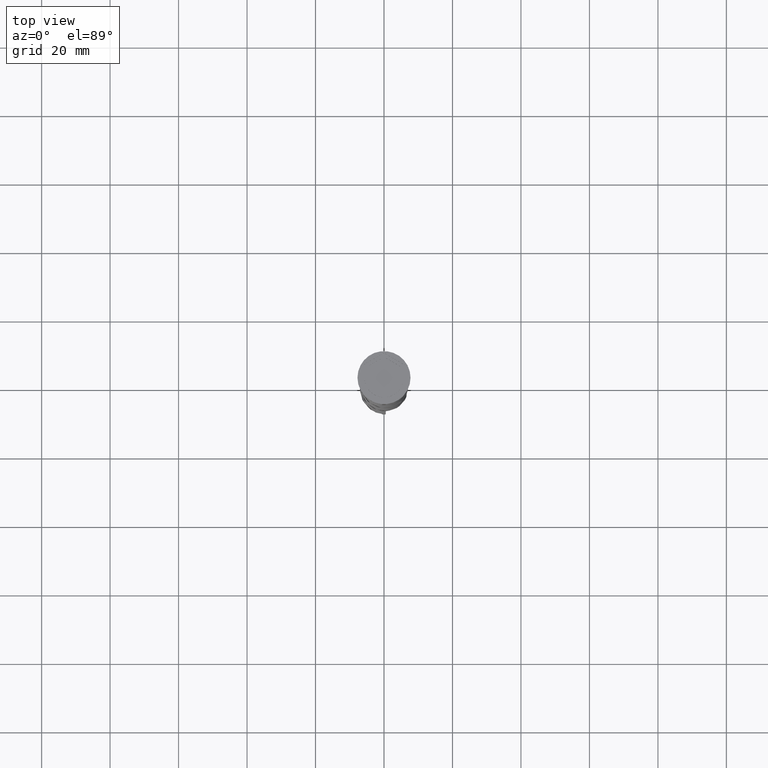
[diagram: clean part render]
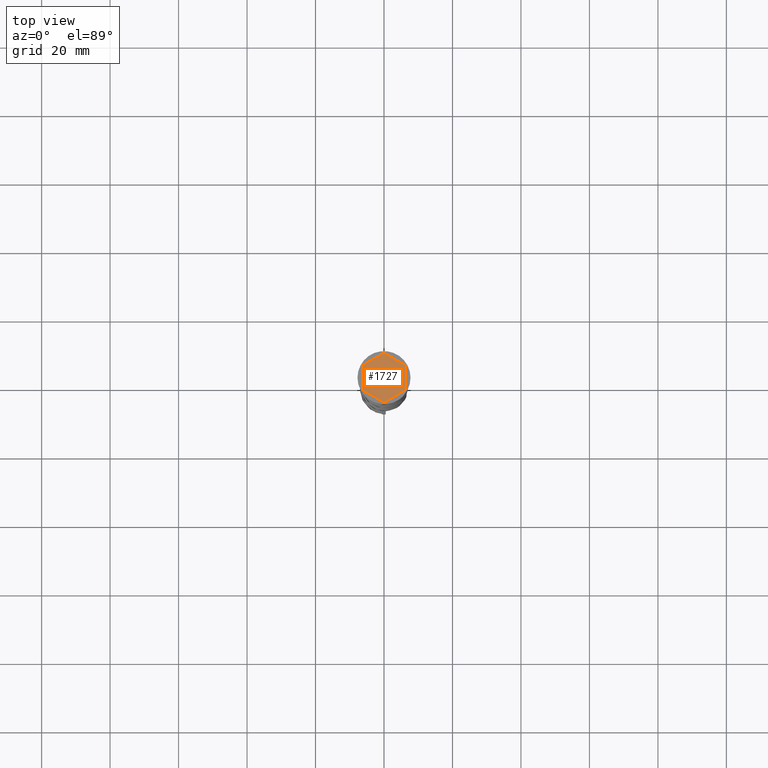
[diagram: same view with one face highlighted and labeled with its STEP entity id]
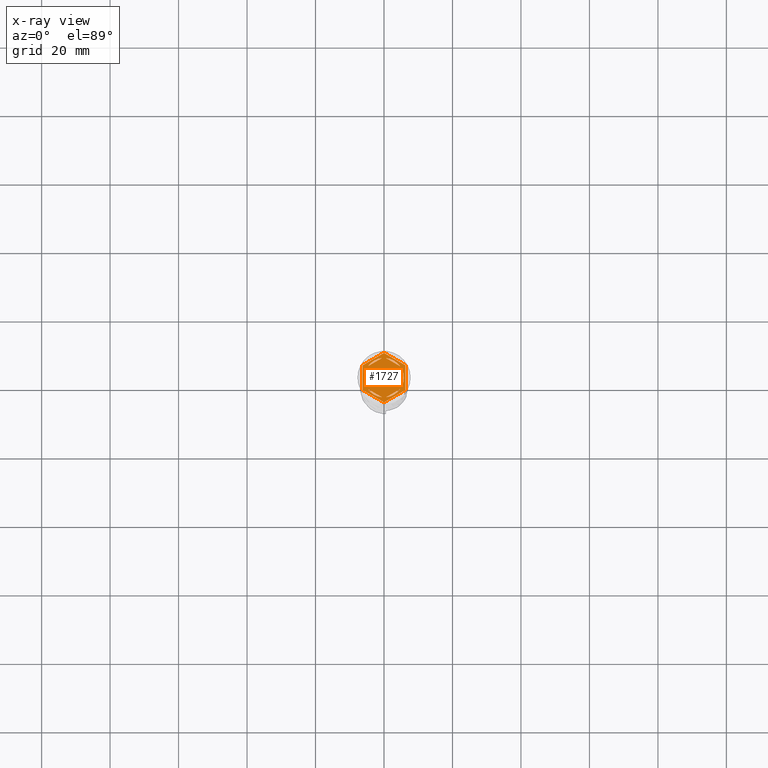
[diagram: x-ray of the same camera — body ghosted, the highlighted face saturated]
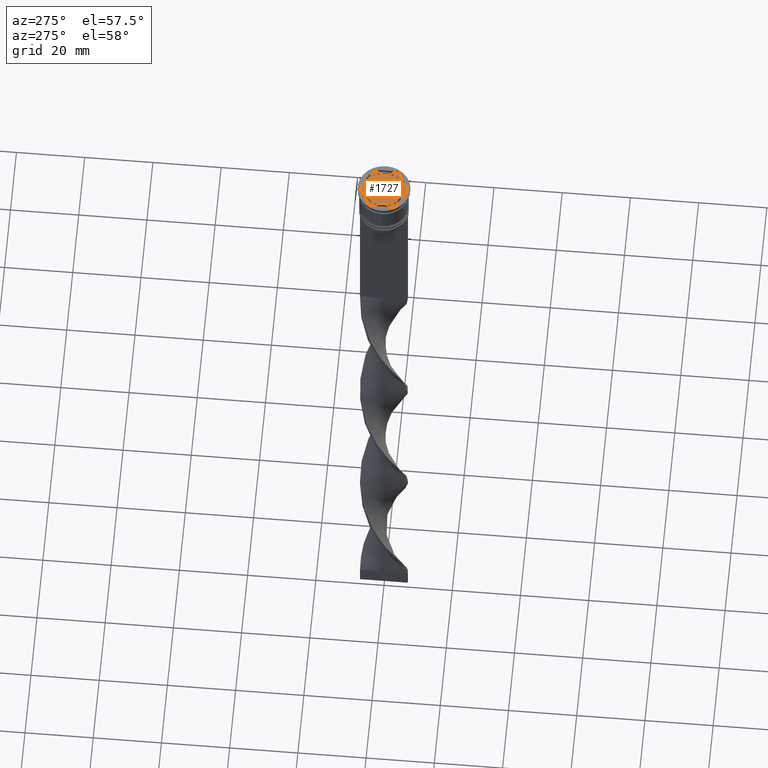
[diagram: same view with one face highlighted and labeled with its STEP entity id]
A machine part, top view. The second image highlights one B-rep face of the part: STEP entity #1727.
The next image is the same camera in x-ray: the body ghosted, the highlighted face saturated — about 0% of this face is hidden behind the body in this view.
A second angle (auxiliary view) of the same face is appended — the face is thin or edge-on in the first view.
In plain terms, the highlighted planar face has unit normal (0, 0, 1).
Its self-contained STEP definition (entity closure, byte-faithful):
#5 = CARTESIAN_POINT ( 'NONE',  ( 5.249999999999996447, -3.031088913245536975, -1.000000000000000888 ) ) ;
#16 = DIRECTION ( 'NONE',  ( 1.000000000000000000, 0.000000000000000000, -0.000000000000000000 ) ) ;
#35 = CARTESIAN_POINT ( 'NONE',  ( 0.000000000000000000, 0.000000000000000000, -1.000000000000000000 ) ) ;
#47 = EDGE_CURVE ( 'NONE', #2640, #2835, #2113, .T. ) ;
#71 = FACE_BOUND ( 'NONE', #3683, .T. ) ;
#98 = DIRECTION ( 'NONE',  ( 0.8660254037844387076, -0.4999999999999998335, 0.000000000000000000 ) ) ;
#109 = CARTESIAN_POINT ( 'NONE',  ( -5.750000000000000000, 0.000000000000000000, -1.000000000000000000 ) ) ;
#139 = CARTESIAN_POINT ( 'NONE',  ( -5.249999999999999112, -3.031088913245534311, -1.000000000000000888 ) ) ;
#161 = EDGE_CURVE ( 'NONE', #3754, #3654, #1892, .T. ) ;
#170 = DIRECTION ( 'NONE',  ( 1.000000000000000000, 0.000000000000000000, 0.000000000000000000 ) ) ;
#186 = CARTESIAN_POINT ( 'NONE',  ( 4.656009601158990208, -3.374029429912445810, -1.000000000000000888 ) ) ;
#195 = ORIENTED_EDGE ( 'NONE', *, *, #161, .F. ) ;
#202 = CARTESIAN_POINT ( 'NONE',  ( -4.656009601158991096, -3.374029429912444034, -1.000000000000000888 ) ) ;
#253 = EDGE_CURVE ( 'NONE', #1982, #3417, #1031, .T. ) ;
#315 = VECTOR ( 'NONE', #601, 1000.000000000000000 ) ;
#321 = EDGE_CURVE ( 'NONE', #439, #3044, #1717, .T. ) ;
#333 = FACE_BOUND ( 'NONE', #1900, .T. ) ;
#359 = EDGE_CURVE ( 'NONE', #491, #843, #1645, .T. ) ;
#365 = EDGE_CURVE ( 'NONE', #2084, #579, #1942, .T. ) ;
#378 = LINE ( 'NONE', #664, #3442 ) ;
#410 = CARTESIAN_POINT ( 'NONE',  ( 0.000000000000000000, 0.000000000000000000, -1.000000000000000000 ) ) ;
#439 = VERTEX_POINT ( 'NONE', #3468 ) ;
#452 = CARTESIAN_POINT ( 'NONE',  ( 0.000000000000000000, 0.000000000000000000, -1.000000000000000000 ) ) ;
#469 = EDGE_LOOP ( 'NONE', ( #472, #1823 ) ) ;
#472 = ORIENTED_EDGE ( 'NONE', *, *, #3115, .F. ) ;
#487 = ORIENTED_EDGE ( 'NONE', *, *, #365, .T. ) ;
#488 = DIRECTION ( 'NONE',  ( 0.000000000000000000, 0.000000000000000000, 1.000000000000000000 ) ) ;
#491 = VERTEX_POINT ( 'NONE', #186 ) ;
#504 = CARTESIAN_POINT ( 'NONE',  ( 8.729740977282959667E-16, -7.216878364870321860, -1.000000000000000000 ) ) ;
#553 = CIRCLE ( 'NONE', #2730, 5.750000000000000000 ) ;
#579 = VERTEX_POINT ( 'NONE', #1170 ) ;
#584 = ORIENTED_EDGE ( 'NONE', *, *, #3072, .F. ) ;
#594 = VERTEX_POINT ( 'NONE', #2365 ) ;
#601 = DIRECTION ( 'NONE',  ( 2.403703357979454647E-16, 1.000000000000000000, 0.000000000000000000 ) ) ;
#612 = DIRECTION ( 'NONE',  ( 1.000000000000000000, 0.000000000000000000, 0.000000000000000000 ) ) ;
#647 = LINE ( 'NONE', #2784, #2546 ) ;
#652 = EDGE_LOOP ( 'NONE', ( #584, #1313, #861 ) ) ;
#664 = CARTESIAN_POINT ( 'NONE',  ( 5.249999999999997335, 3.031088913245537864, -1.000000000000000888 ) ) ;
#699 = VERTEX_POINT ( 'NONE', #3139 ) ;
#757 = ORIENTED_EDGE ( 'NONE', *, *, #3001, .F. ) ;
#774 = DIRECTION ( 'NONE',  ( -0.8660254037844387076, -0.4999999999999997224, 0.000000000000000000 ) ) ;
#803 = DIRECTION ( 'NONE',  ( 0.000000000000000000, -1.000000000000000000, 0.000000000000000000 ) ) ;
#839 = ORIENTED_EDGE ( 'NONE', *, *, #1006, .T. ) ;
#843 = VERTEX_POINT ( 'NONE', #2657 ) ;
#860 = ORIENTED_EDGE ( 'NONE', *, *, #1169, .F. ) ;
#861 = ORIENTED_EDGE ( 'NONE', *, *, #1760, .F. ) ;
#862 = DIRECTION ( 'NONE',  ( 0.8660254037844385966, 0.5000000000000001110, 0.000000000000000000 ) ) ;
#876 = FACE_BOUND ( 'NONE', #469, .T. ) ;
#892 = ORIENTED_EDGE ( 'NONE', *, *, #253, .F. ) ;
#897 = FACE_BOUND ( 'NONE', #3517, .T. ) ;
#905 = DIRECTION ( 'NONE',  ( 0.000000000000000000, 1.000000000000000000, 0.000000000000000000 ) ) ;
#925 = CARTESIAN_POINT ( 'NONE',  ( -6.249999999999999112, -3.608439182435161374, -1.000000000000000000 ) ) ;
#928 = VECTOR ( 'NONE', #2175, 1000.000000000000000 ) ;
#934 = AXIS2_PLACEMENT_3D ( 'NONE', #2887, #1988, #3680 ) ;
#953 = FACE_BOUND ( 'NONE', #1291, .T. ) ;
#995 = DIRECTION ( 'NONE',  ( 0.8660254037844385966, -0.4999999999999998890, 0.000000000000000000 ) ) ;
#1006 = EDGE_CURVE ( 'NONE', #594, #699, #3448, .T. ) ;
#1031 = CIRCLE ( 'NONE', #3271, 5.750000000000000000 ) ;
#1038 = LINE ( 'NONE', #3451, #3406 ) ;
#1089 = CARTESIAN_POINT ( 'NONE',  ( 0.000000000000000000, 0.000000000000000000, -1.000000000000000000 ) ) ;
#1139 = ORIENTED_EDGE ( 'NONE', *, *, #2507, .T. ) ;
#1153 = CARTESIAN_POINT ( 'NONE',  ( -0.5939903988410105695, -5.719237309824160675, -1.000000000000000888 ) ) ;
#1169 = EDGE_CURVE ( 'NONE', #3417, #1982, #2367, .T. ) ;
#1170 = CARTESIAN_POINT ( 'NONE',  ( -6.249999999999999112, 3.608439182435158710, -1.000000000000000000 ) ) ;
#1254 = ORIENTED_EDGE ( 'NONE', *, *, #1736, .T. ) ;
#1291 = EDGE_LOOP ( 'NONE', ( #3512, #3709 ) ) ;
#1313 = ORIENTED_EDGE ( 'NONE', *, *, #47, .F. ) ;
#1314 = CARTESIAN_POINT ( 'NONE',  ( 8.673617379884035472E-16, 6.062177826491070398, -1.000000000000000888 ) ) ;
#1328 = EDGE_CURVE ( 'NONE', #3236, #3493, #378, .T. ) ;
#1408 = ORIENTED_EDGE ( 'NONE', *, *, #3053, .T. ) ;
#1410 = DIRECTION ( 'NONE',  ( -0.8660254037844385966, -0.5000000000000001110, 0.000000000000000000 ) ) ;
#1414 = CARTESIAN_POINT ( 'NONE',  ( 0.000000000000000000, 7.216878364870320084, -1.000000000000000000 ) ) ;
#1415 = VERTEX_POINT ( 'NONE', #2837 ) ;
#1418 = AXIS2_PLACEMENT_3D ( 'NONE', #1963, #488, #612 ) ;
#1485 = VERTEX_POINT ( 'NONE', #109 ) ;
#1496 = EDGE_CURVE ( 'NONE', #3654, #3754, #1860, .T. ) ;
#1619 = LINE ( 'NONE', #1314, #928 ) ;
#1630 = DIRECTION ( 'NONE',  ( 0.000000000000000000, 0.000000000000000000, 1.000000000000000000 ) ) ;
#1645 = LINE ( 'NONE', #3126, #1845 ) ;
#1650 = CARTESIAN_POINT ( 'NONE',  ( -4.656009601158989319, 3.374029429912446698, -1.000000000000000888 ) ) ;
#1684 = DIRECTION ( 'NONE',  ( 1.000000000000000000, 0.000000000000000000, 0.000000000000000000 ) ) ;
#1700 = CARTESIAN_POINT ( 'NONE',  ( 5.249999999999997335, 2.345207879911718862, -1.000000000000000888 ) ) ;
#1717 = CIRCLE ( 'NONE', #2225, 5.750000000000000000 ) ;
#1718 = ORIENTED_EDGE ( 'NONE', *, *, #2601, .T. ) ;
#1727 = ADVANCED_FACE ( 'NONE', ( #897, #71, #876, #333, #2083, #953, #2396 ), #3544, .T. ) ;
#1736 = EDGE_CURVE ( 'NONE', #699, #1415, #3254, .T. ) ;
#1760 = EDGE_CURVE ( 'NONE', #1485, #2640, #553, .T. ) ;
#1803 = AXIS2_PLACEMENT_3D ( 'NONE', #1089, #3149, #2541 ) ;
#1823 = ORIENTED_EDGE ( 'NONE', *, *, #359, .F. ) ;
#1845 = VECTOR ( 'NONE', #774, 1000.000000000000114 ) ;
#1860 = CIRCLE ( 'NONE', #3454, 5.750000000000000000 ) ;
#1892 = LINE ( 'NONE', #139, #2971 ) ;
#1900 = EDGE_LOOP ( 'NONE', ( #2347, #195 ) ) ;
#1905 = EDGE_CURVE ( 'NONE', #3044, #439, #1619, .T. ) ;
#1918 = AXIS2_PLACEMENT_3D ( 'NONE', #2138, #2974, #16 ) ;
#1923 = VECTOR ( 'NONE', #3358, 1000.000000000000000 ) ;
#1942 = LINE ( 'NONE', #2613, #3627 ) ;
#1957 = CARTESIAN_POINT ( 'NONE',  ( 0.5939903988410126789, 5.719237309824160675, -1.000000000000000888 ) ) ;
#1962 = VECTOR ( 'NONE', #3532, 1000.000000000000000 ) ;
#1963 = CARTESIAN_POINT ( 'NONE',  ( 0.000000000000000000, 0.000000000000000000, -1.000000000000000000 ) ) ;
#1982 = VERTEX_POINT ( 'NONE', #3347 ) ;
#1988 = DIRECTION ( 'NONE',  ( 0.000000000000000000, 0.000000000000000000, 1.000000000000000000 ) ) ;
#2083 = FACE_BOUND ( 'NONE', #652, .T. ) ;
#2084 = VERTEX_POINT ( 'NONE', #1414 ) ;
#2113 = LINE ( 'NONE', #2676, #3391 ) ;
#2138 = CARTESIAN_POINT ( 'NONE',  ( 0.000000000000000000, 0.000000000000000000, -1.000000000000000000 ) ) ;
#2175 = DIRECTION ( 'NONE',  ( 0.8660254037844387076, 0.4999999999999999445, -0.000000000000000000 ) ) ;
#2183 = CARTESIAN_POINT ( 'NONE',  ( 6.250000000000000000, 3.608439182435161374, -1.000000000000000000 ) ) ;
#2225 = AXIS2_PLACEMENT_3D ( 'NONE', #3165, #3200, #1684 ) ;
#2256 = EDGE_LOOP ( 'NONE', ( #1718, #487, #1408, #1139, #839, #1254 ) ) ;
#2343 = ORIENTED_EDGE ( 'NONE', *, *, #1328, .F. ) ;
#2347 = ORIENTED_EDGE ( 'NONE', *, *, #1496, .F. ) ;
#2365 = CARTESIAN_POINT ( 'NONE',  ( 8.729740977282959667E-16, -7.216878364870321860, -1.000000000000000000 ) ) ;
#2367 = LINE ( 'NONE', #5, #1962 ) ;
#2381 = CARTESIAN_POINT ( 'NONE',  ( 6.249999999999998224, -3.608439182435161374, -1.000000000000000000 ) ) ;
#2396 = FACE_OUTER_BOUND ( 'NONE', #2256, .T. ) ;
#2429 = CIRCLE ( 'NONE', #1803, 5.750000000000000000 ) ;
#2433 = DIRECTION ( 'NONE',  ( 0.000000000000000000, 0.000000000000000000, 1.000000000000000000 ) ) ;
#2472 = VECTOR ( 'NONE', #862, 1000.000000000000000 ) ;
#2507 = EDGE_CURVE ( 'NONE', #2816, #594, #647, .T. ) ;
#2529 = DIRECTION ( 'NONE',  ( 1.000000000000000000, 0.000000000000000000, 0.000000000000000000 ) ) ;
#2541 = DIRECTION ( 'NONE',  ( 1.000000000000000000, 0.000000000000000000, 0.000000000000000000 ) ) ;
#2546 = VECTOR ( 'NONE', #995, 1000.000000000000227 ) ;
#2601 = EDGE_CURVE ( 'NONE', #1415, #2084, #3636, .T. ) ;
#2609 = CIRCLE ( 'NONE', #934, 5.750000000000000000 ) ;
#2613 = CARTESIAN_POINT ( 'NONE',  ( 0.000000000000000000, 7.216878364870320084, -1.000000000000000000 ) ) ;
#2640 = VERTEX_POINT ( 'NONE', #3673 ) ;
#2657 = CARTESIAN_POINT ( 'NONE',  ( 0.5939903988410074609, -5.719237309824160675, -1.000000000000000888 ) ) ;
#2676 = CARTESIAN_POINT ( 'NONE',  ( -5.249999999999999112, 3.031088913245535199, -1.000000000000000888 ) ) ;
#2730 = AXIS2_PLACEMENT_3D ( 'NONE', #35, #2433, #3309 ) ;
#2784 = CARTESIAN_POINT ( 'NONE',  ( -6.249999999999999112, -3.608439182435161374, -1.000000000000000000 ) ) ;
#2816 = VERTEX_POINT ( 'NONE', #925 ) ;
#2835 = VERTEX_POINT ( 'NONE', #3553 ) ;
#2837 = CARTESIAN_POINT ( 'NONE',  ( 6.250000000000000000, 3.608439182435161374, -1.000000000000000000 ) ) ;
#2887 = CARTESIAN_POINT ( 'NONE',  ( 0.000000000000000000, 0.000000000000000000, -1.000000000000000000 ) ) ;
#2971 = VECTOR ( 'NONE', #3642, 1000.000000000000114 ) ;
#2974 = DIRECTION ( 'NONE',  ( 0.000000000000000000, 0.000000000000000000, 1.000000000000000000 ) ) ;
#3001 = EDGE_CURVE ( 'NONE', #3493, #3236, #2429, .T. ) ;
#3044 = VERTEX_POINT ( 'NONE', #1650 ) ;
#3046 = CIRCLE ( 'NONE', #1418, 5.750000000000000000 ) ;
#3053 = EDGE_CURVE ( 'NONE', #579, #2816, #1038, .T. ) ;
#3070 = DIRECTION ( 'NONE',  ( 0.000000000000000000, 0.000000000000000000, 1.000000000000000000 ) ) ;
#3072 = EDGE_CURVE ( 'NONE', #2835, #1485, #2609, .T. ) ;
#3115 = EDGE_CURVE ( 'NONE', #843, #491, #3046, .T. ) ;
#3126 = CARTESIAN_POINT ( 'NONE',  ( -1.734723475976807094E-15, -6.062177826491069510, -1.000000000000000888 ) ) ;
#3139 = CARTESIAN_POINT ( 'NONE',  ( 6.249999999999998224, -3.608439182435161374, -1.000000000000000000 ) ) ;
#3149 = DIRECTION ( 'NONE',  ( 0.000000000000000000, 0.000000000000000000, 1.000000000000000000 ) ) ;
#3165 = CARTESIAN_POINT ( 'NONE',  ( 0.000000000000000000, 0.000000000000000000, -1.000000000000000000 ) ) ;
#3181 = CARTESIAN_POINT ( 'NONE',  ( 4.656009601158988431, 3.374029429912448919, -1.000000000000000888 ) ) ;
#3200 = DIRECTION ( 'NONE',  ( 0.000000000000000000, 0.000000000000000000, 1.000000000000000000 ) ) ;
#3236 = VERTEX_POINT ( 'NONE', #1957 ) ;
#3254 = LINE ( 'NONE', #2381, #315 ) ;
#3271 = AXIS2_PLACEMENT_3D ( 'NONE', #452, #1630, #170 ) ;
#3309 = DIRECTION ( 'NONE',  ( 1.000000000000000000, 0.000000000000000000, 0.000000000000000000 ) ) ;
#3347 = CARTESIAN_POINT ( 'NONE',  ( 5.249999999999997335, -2.345207879911720639, -1.000000000000000888 ) ) ;
#3358 = DIRECTION ( 'NONE',  ( -0.8660254037844388186, 0.4999999999999997224, 0.000000000000000000 ) ) ;
#3391 = VECTOR ( 'NONE', #905, 1000.000000000000000 ) ;
#3406 = VECTOR ( 'NONE', #803, 1000.000000000000000 ) ;
#3417 = VERTEX_POINT ( 'NONE', #1700 ) ;
#3442 = VECTOR ( 'NONE', #98, 1000.000000000000114 ) ;
#3448 = LINE ( 'NONE', #504, #2472 ) ;
#3451 = CARTESIAN_POINT ( 'NONE',  ( -6.249999999999999112, 3.608439182435158710, -1.000000000000000000 ) ) ;
#3454 = AXIS2_PLACEMENT_3D ( 'NONE', #410, #3070, #2529 ) ;
#3468 = CARTESIAN_POINT ( 'NONE',  ( -0.5939903988410105695, 5.719237309824159787, -1.000000000000000888 ) ) ;
#3493 = VERTEX_POINT ( 'NONE', #3181 ) ;
#3512 = ORIENTED_EDGE ( 'NONE', *, *, #321, .F. ) ;
#3517 = EDGE_LOOP ( 'NONE', ( #757, #2343 ) ) ;
#3532 = DIRECTION ( 'NONE',  ( -1.430775808321103440E-16, -1.000000000000000000, 0.000000000000000000 ) ) ;
#3544 = PLANE ( 'NONE',  #1918 ) ;
#3553 = CARTESIAN_POINT ( 'NONE',  ( -5.249999999999999112, 2.345207879911715310, -1.000000000000000888 ) ) ;
#3627 = VECTOR ( 'NONE', #1410, 1000.000000000000114 ) ;
#3636 = LINE ( 'NONE', #2183, #1923 ) ;
#3642 = DIRECTION ( 'NONE',  ( -0.8660254037844384856, 0.5000000000000002220, 0.000000000000000000 ) ) ;
#3654 = VERTEX_POINT ( 'NONE', #202 ) ;
#3673 = CARTESIAN_POINT ( 'NONE',  ( -5.249999999999999112, -2.345207879911715310, -1.000000000000000888 ) ) ;
#3680 = DIRECTION ( 'NONE',  ( 1.000000000000000000, 0.000000000000000000, 0.000000000000000000 ) ) ;
#3683 = EDGE_LOOP ( 'NONE', ( #892, #860 ) ) ;
#3709 = ORIENTED_EDGE ( 'NONE', *, *, #1905, .F. ) ;
#3754 = VERTEX_POINT ( 'NONE', #1153 ) ;